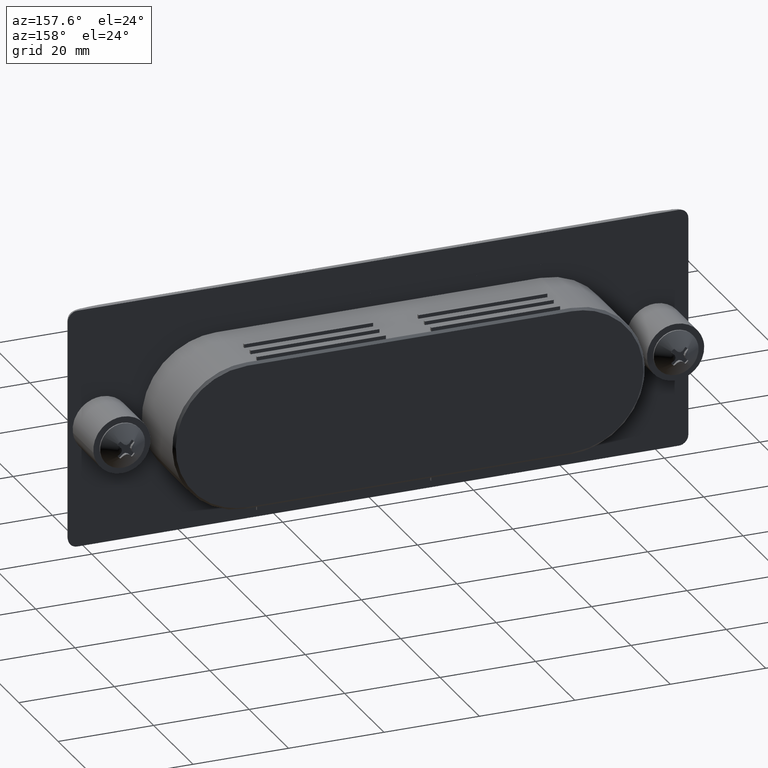
[diagram: clean part render]
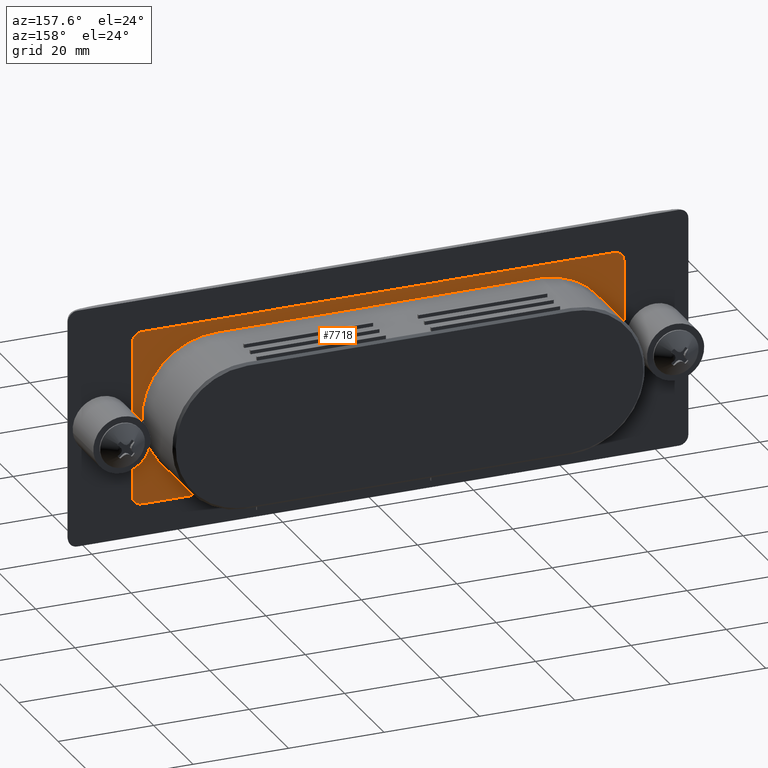
[diagram: same view with one face highlighted and labeled with its STEP entity id]
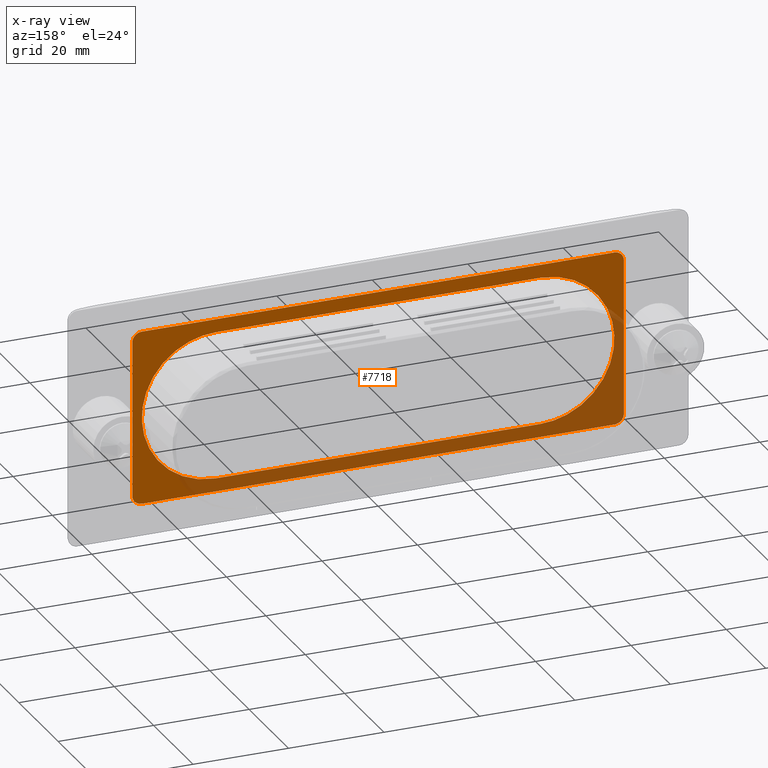
[diagram: x-ray of the same camera — body ghosted, the highlighted face saturated]
A machine part, auxiliary view. The second image highlights one B-rep face of the part: STEP entity #7718.
The next image is the same camera in x-ray: the body ghosted, the highlighted face saturated — about 39% of this face is hidden behind the body in this view.
In plain terms, the highlighted face is a freeform B-spline surface patch.
Its self-contained STEP definition (entity closure, byte-faithful):
#7525=CARTESIAN_POINT('',(34.0,0.0,-15.500000000000000));
#7526=VERTEX_POINT('',#7525);
#7533=CARTESIAN_POINT('',(34.0,0.0,15.500000000000000));
#7534=VERTEX_POINT('',#7533);
#7540=CARTESIAN_POINT('',(34.0,0.0,-15.500000000000000));
#7541=CARTESIAN_POINT('',(49.499999999999993,0.0,-15.500000000000004));
#7542=CARTESIAN_POINT('',(49.500000000000000,0.0,0.0));
#7543=CARTESIAN_POINT('',(49.499999999999993,0.0,15.500000000000004));
#7544=CARTESIAN_POINT('',(34.0,0.0,15.500000000000000));
#7552=(BOUNDED_CURVE()B_SPLINE_CURVE(2,(#7540,#7541,#7542,#7543,#7544),.UNSPECIFIED.,.F.,.U.)B_SPLINE_CURVE_WITH_KNOTS((3,2,3),(0.0,0.500000000000000,1.0),.UNSPECIFIED.)CURVE()GEOMETRIC_REPRESENTATION_ITEM()RATIONAL_B_SPLINE_CURVE((1.0,0.707106781186548,1.0,0.707106781186548,1.0))REPRESENTATION_ITEM(''));
#7553=EDGE_CURVE('',#7526,#7534,#7552,.T.);
#7576=CARTESIAN_POINT('',(-34.0,0.0,15.500000000000000));
#7577=VERTEX_POINT('',#7576);
#7584=CARTESIAN_POINT('',(-34.0,0.0,-15.500000000000000));
#7585=VERTEX_POINT('',#7584);
#7591=CARTESIAN_POINT('',(-34.0,0.0,15.500000000000000));
#7592=CARTESIAN_POINT('',(-49.499999999999993,0.0,15.500000000000004));
#7593=CARTESIAN_POINT('',(-49.500000000000000,0.0,0.0));
#7594=CARTESIAN_POINT('',(-49.499999999999993,0.0,-15.500000000000004));
#7595=CARTESIAN_POINT('',(-34.0,0.0,-15.500000000000000));
#7603=(BOUNDED_CURVE()B_SPLINE_CURVE(2,(#7591,#7592,#7593,#7594,#7595),.UNSPECIFIED.,.F.,.U.)B_SPLINE_CURVE_WITH_KNOTS((3,2,3),(0.0,0.500000000000000,1.0),.UNSPECIFIED.)CURVE()GEOMETRIC_REPRESENTATION_ITEM()RATIONAL_B_SPLINE_CURVE((1.0,0.707106781186548,1.0,0.707106781186548,1.0))REPRESENTATION_ITEM(''));
#7604=EDGE_CURVE('',#7577,#7585,#7603,.T.);
#7609=CARTESIAN_POINT('',(-56.644849800366018,0.0,20.073174929255920));
#7610=CARTESIAN_POINT('',(56.644852563041297,0.0,20.073174929255920));
#7611=CARTESIAN_POINT('',(-56.644849800366018,0.0,-20.073175908262218));
#7612=CARTESIAN_POINT('',(56.644852563041297,0.0,-20.073175908262211));
#7613=B_SPLINE_SURFACE_WITH_KNOTS('',1,1,((#7609,#7611),(#7610,#7612)),.UNSPECIFIED.,.F.,.F.,.U.,(2,2),(2,2),(0.0,113.289702363407300),(0.0,40.146350837518142),.UNSPECIFIED.);
#7614=CARTESIAN_POINT('',(51.500000000000000,0.0,16.250000000000000));
#7615=VERTEX_POINT('',#7614);
#7616=CARTESIAN_POINT('',(49.500000000000000,0.0,18.250000000000000));
#7617=VERTEX_POINT('',#7616);
#7618=CARTESIAN_POINT('',(51.500000000000007,0.0,16.250000000000000));
#7619=CARTESIAN_POINT('',(51.500000000000000,0.0,18.250000000000011));
#7620=CARTESIAN_POINT('',(49.500000000000000,0.0,18.250000000000000));
#7628=(BOUNDED_CURVE()B_SPLINE_CURVE(2,(#7618,#7619,#7620),.UNSPECIFIED.,.F.,.U.)CURVE()GEOMETRIC_REPRESENTATION_ITEM()QUASI_UNIFORM_CURVE()RATIONAL_B_SPLINE_CURVE((1.0,0.707106781186548,1.0))REPRESENTATION_ITEM(''));
#7629=EDGE_CURVE('',#7615,#7617,#7628,.T.);
#7630=ORIENTED_EDGE('',*,*,#7629,.F.);
#7631=CARTESIAN_POINT('',(51.500000000000000,0.0,-16.250000000000000));
#7632=VERTEX_POINT('',#7631);
#7633=CARTESIAN_POINT('',(51.500000000000000,0.0,-16.250000000000000));
#7634=CARTESIAN_POINT('',(51.500000000000000,0.0,16.250000000000000));
#7635=QUASI_UNIFORM_CURVE('',1,(#7633,#7634),.UNSPECIFIED.,.F.,.U.);
#7636=EDGE_CURVE('',#7632,#7615,#7635,.T.);
#7637=ORIENTED_EDGE('',*,*,#7636,.F.);
#7638=CARTESIAN_POINT('',(49.500000000000000,0.0,-18.250000000000000));
#7639=VERTEX_POINT('',#7638);
#7640=CARTESIAN_POINT('',(49.500000000000000,0.0,-18.250000000000000));
#7641=CARTESIAN_POINT('',(51.500000000000000,0.0,-18.250000000000011));
#7642=CARTESIAN_POINT('',(51.500000000000007,0.0,-16.250000000000000));
#7650=(BOUNDED_CURVE()B_SPLINE_CURVE(2,(#7640,#7641,#7642),.UNSPECIFIED.,.F.,.U.)CURVE()GEOMETRIC_REPRESENTATION_ITEM()QUASI_UNIFORM_CURVE()RATIONAL_B_SPLINE_CURVE((1.0,0.707106781186548,1.0))REPRESENTATION_ITEM(''));
#7651=EDGE_CURVE('',#7639,#7632,#7650,.T.);
#7652=ORIENTED_EDGE('',*,*,#7651,.F.);
#7653=CARTESIAN_POINT('',(-49.500000000000000,0.0,-18.250000000000000));
#7654=VERTEX_POINT('',#7653);
#7655=CARTESIAN_POINT('',(-49.500000000000000,0.0,-18.250000000000000));
#7656=CARTESIAN_POINT('',(49.500000000000000,0.0,-18.250000000000000));
#7657=QUASI_UNIFORM_CURVE('',1,(#7655,#7656),.UNSPECIFIED.,.F.,.U.);
#7658=EDGE_CURVE('',#7654,#7639,#7657,.T.);
#7659=ORIENTED_EDGE('',*,*,#7658,.F.);
#7660=CARTESIAN_POINT('',(-51.500000000000000,0.0,-16.250000000000000));
#7661=VERTEX_POINT('',#7660);
#7662=CARTESIAN_POINT('',(-51.500000000000007,0.0,-16.250000000000000));
#7663=CARTESIAN_POINT('',(-51.500000000000000,0.0,-18.250000000000011));
#7664=CARTESIAN_POINT('',(-49.500000000000000,0.0,-18.250000000000000));
#7672=(BOUNDED_CURVE()B_SPLINE_CURVE(2,(#7662,#7663,#7664),.UNSPECIFIED.,.F.,.U.)CURVE()GEOMETRIC_REPRESENTATION_ITEM()QUASI_UNIFORM_CURVE()RATIONAL_B_SPLINE_CURVE((1.0,0.707106781186548,1.0))REPRESENTATION_ITEM(''));
#7673=EDGE_CURVE('',#7661,#7654,#7672,.T.);
#7674=ORIENTED_EDGE('',*,*,#7673,.F.);
#7675=CARTESIAN_POINT('',(-51.500000000000000,0.0,16.250000000000000));
#7676=VERTEX_POINT('',#7675);
#7677=CARTESIAN_POINT('',(-51.500000000000000,0.0,16.250000000000000));
#7678=CARTESIAN_POINT('',(-51.500000000000000,0.0,-16.250000000000000));
#7679=QUASI_UNIFORM_CURVE('',1,(#7677,#7678),.UNSPECIFIED.,.F.,.U.);
#7680=EDGE_CURVE('',#7676,#7661,#7679,.T.);
#7681=ORIENTED_EDGE('',*,*,#7680,.F.);
#7682=CARTESIAN_POINT('',(-49.500000000000000,0.0,18.250000000000000));
#7683=VERTEX_POINT('',#7682);
#7684=CARTESIAN_POINT('',(-49.500000000000000,0.0,18.250000000000000));
#7685=CARTESIAN_POINT('',(-51.500000000000000,0.0,18.250000000000011));
#7686=CARTESIAN_POINT('',(-51.500000000000007,0.0,16.250000000000000));
#7694=(BOUNDED_CURVE()B_SPLINE_CURVE(2,(#7684,#7685,#7686),.UNSPECIFIED.,.F.,.U.)CURVE()GEOMETRIC_REPRESENTATION_ITEM()QUASI_UNIFORM_CURVE()RATIONAL_B_SPLINE_CURVE((1.0,0.707106781186548,1.0))REPRESENTATION_ITEM(''));
#7695=EDGE_CURVE('',#7683,#7676,#7694,.T.);
#7696=ORIENTED_EDGE('',*,*,#7695,.F.);
#7697=CARTESIAN_POINT('',(49.500000000000000,0.0,18.250000000000000));
#7698=CARTESIAN_POINT('',(-49.500000000000000,0.0,18.250000000000000));
#7699=QUASI_UNIFORM_CURVE('',1,(#7697,#7698),.UNSPECIFIED.,.F.,.U.);
#7700=EDGE_CURVE('',#7617,#7683,#7699,.T.);
#7701=ORIENTED_EDGE('',*,*,#7700,.F.);
#7702=EDGE_LOOP('',(#7630,#7637,#7652,#7659,#7674,#7681,#7696,#7701));
#7703=FACE_OUTER_BOUND('',#7702,.T.);
#7704=CARTESIAN_POINT('',(-34.0,0.0,-15.500000000000000));
#7705=CARTESIAN_POINT('',(34.0,0.0,-15.500000000000000));
#7706=QUASI_UNIFORM_CURVE('',1,(#7704,#7705),.UNSPECIFIED.,.F.,.U.);
#7707=EDGE_CURVE('',#7585,#7526,#7706,.T.);
#7708=ORIENTED_EDGE('',*,*,#7707,.T.);
#7709=ORIENTED_EDGE('',*,*,#7553,.T.);
#7710=CARTESIAN_POINT('',(34.0,0.0,15.500000000000000));
#7711=CARTESIAN_POINT('',(-34.0,0.0,15.500000000000000));
#7712=QUASI_UNIFORM_CURVE('',1,(#7710,#7711),.UNSPECIFIED.,.F.,.U.);
#7713=EDGE_CURVE('',#7534,#7577,#7712,.T.);
#7714=ORIENTED_EDGE('',*,*,#7713,.T.);
#7715=ORIENTED_EDGE('',*,*,#7604,.T.);
#7716=EDGE_LOOP('',(#7708,#7709,#7714,#7715));
#7717=FACE_BOUND('',#7716,.T.);
#7718=ADVANCED_FACE('',(#7703,#7717),#7613,.T.);